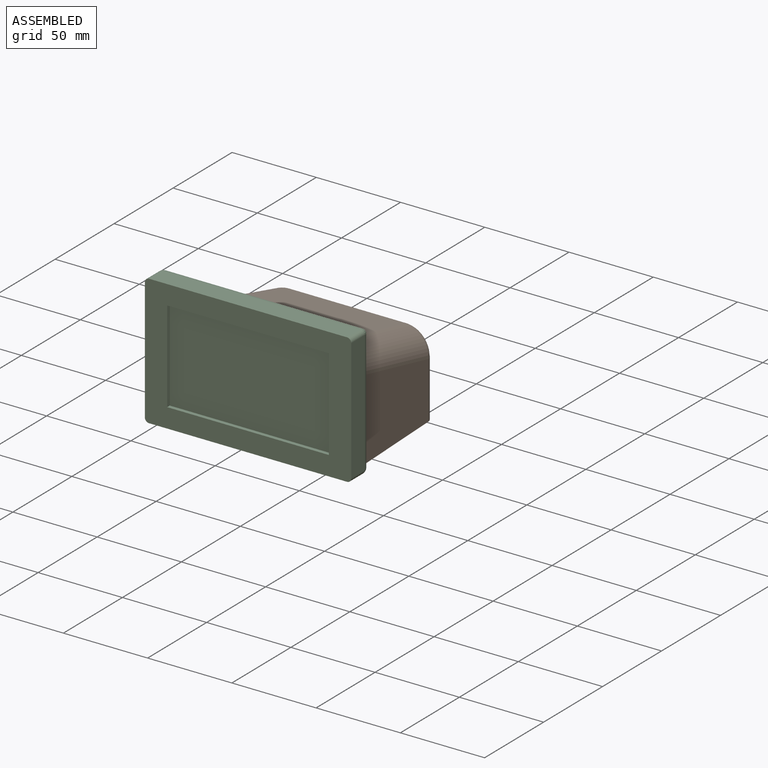
[diagram: assembled view]
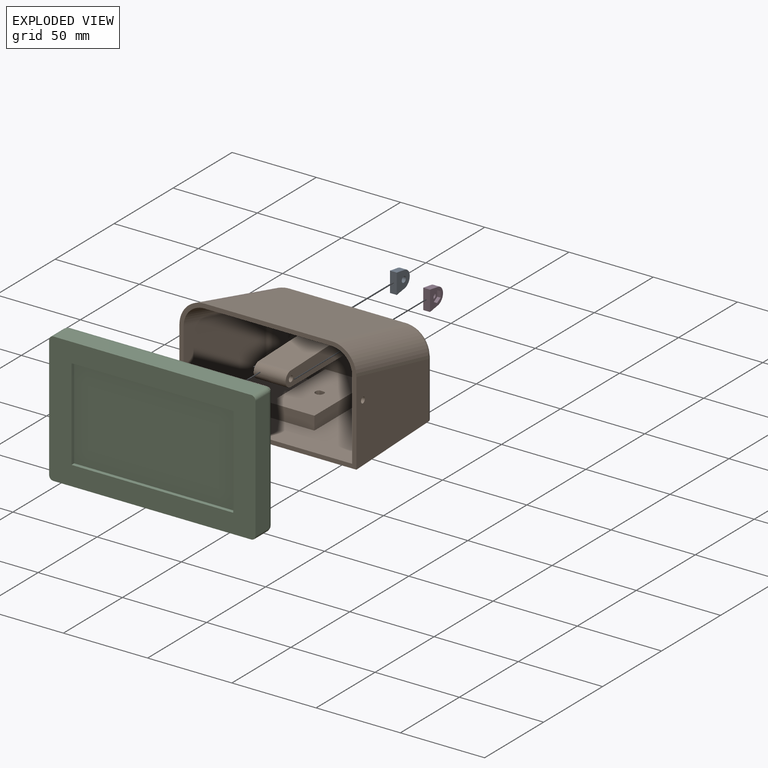
[diagram: exploded view]
GUIDED TOUR — MATED ASSEMBLY (Onshape document 341ad81e3a5d66931a3645af, AutoMate assembly 341ad81e3a5d66931a3645af_e01f6debc5a325e7f9efcc32_fdee58cc52e0db9e7551383a_default)

This assembly has 4 components, labeled P0..P3 below (a component is one placed occurrence of a part; the same part can appear more than once), held together by 3 mates. A mate is a constraint between two components; its type names the relative motion it leaves free:
  FASTENED — locks the two components together rigidly (no relative motion).
Axis/direction vectors are unit vectors and 'through' points are millimeter coordinates, both in the assembly's world frame.

MATES
  1. FASTENED "Fastened 4": P3 <-> P1, direction (-1.000, 0.000, 0.000) through (19.04, 87.10, -22.44) mm
  2. FASTENED "Fastened 2": P2 <-> P0, direction (0.000, 1.000, 0.000) through (-5.46, 81.10, -16.44) mm
  3. FASTENED "Fastened 1": P2 <-> P3, direction (0.000, 1.000, 0.000) through (23.04, 81.10, -16.44) mm

ASSEMBLY ORDER
  1. P1 — the base component [order verified]
  2. P0 [order verified]
  3. P3 [order verified]
  4. P2 [order verified]
Order-tag legend:
  [order verified] — this step's position reverses a verified removal order: the component was checked to insert without passing through the ones already placed.

Of the 4 components, 3 carry the full construction recipe — the FeatureScript program that regenerates the part's solid from scratch; the rest are supplied as boundary geometry only.
Each toured component is shown spotlighted twice — in the assembled view, then in the exploded view, where a leader line traces a displaced component back to its assembled socket (saturated green if recipe-attached, orange if geometry-only; every other component desaturated gray) — followed by its recipe or geometry summary and the mates that hold it.
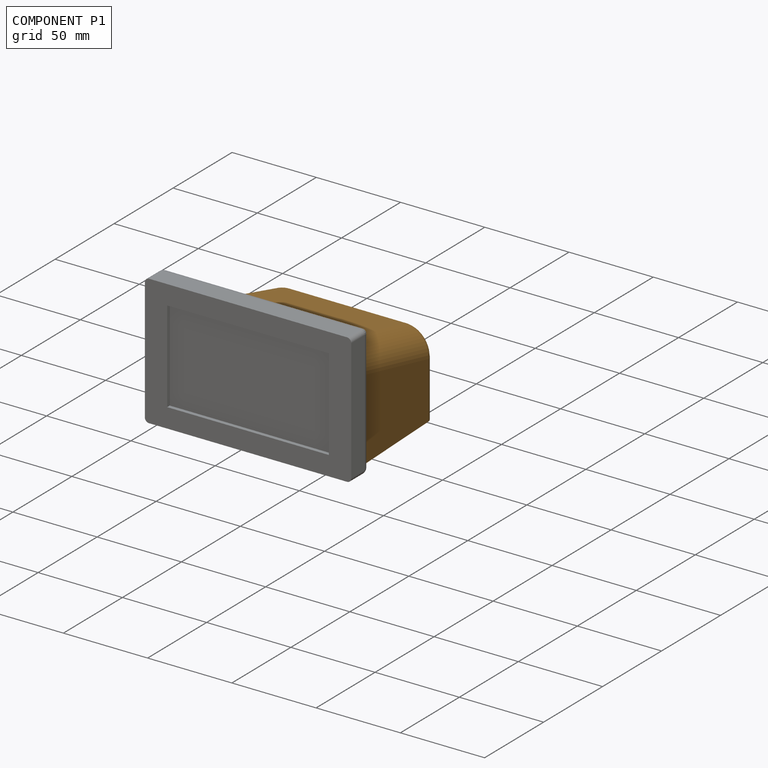
[diagram: component P1 — assembled]
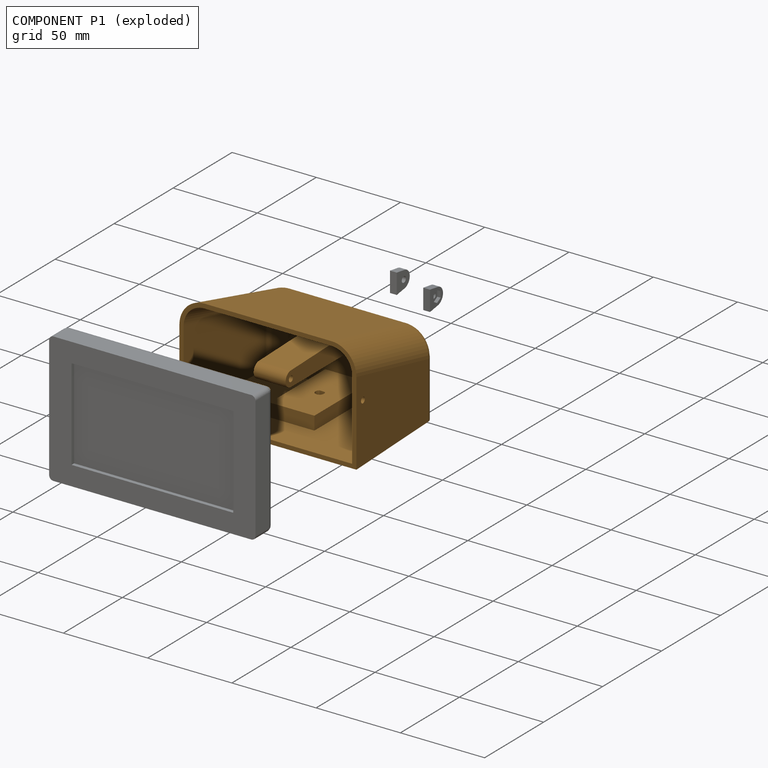
[diagram: component P1 — exploded]
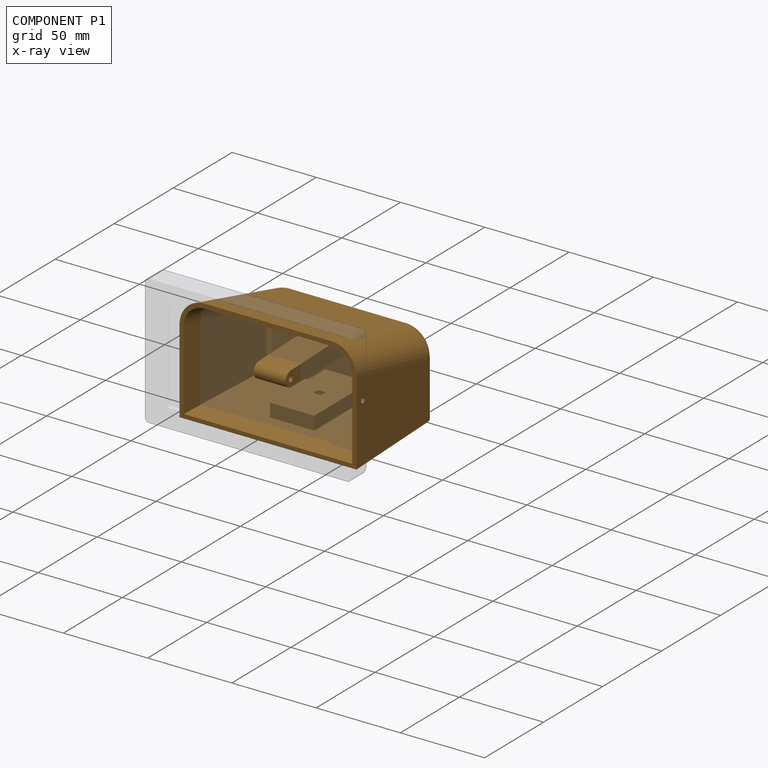
[diagram: component P1 — x-ray view]
COMPONENT P1 — geometry summary (no construction recipe available for this part):
  bounding box: 105.3 x 73.0 x 65.1 mm
  B-rep topology: 1 solid, 83 faces, 446 edges
  volume: 85888 mm^3 (17% of its bounding box)
Held by: FASTENED mate "Fastened 4" to P3.
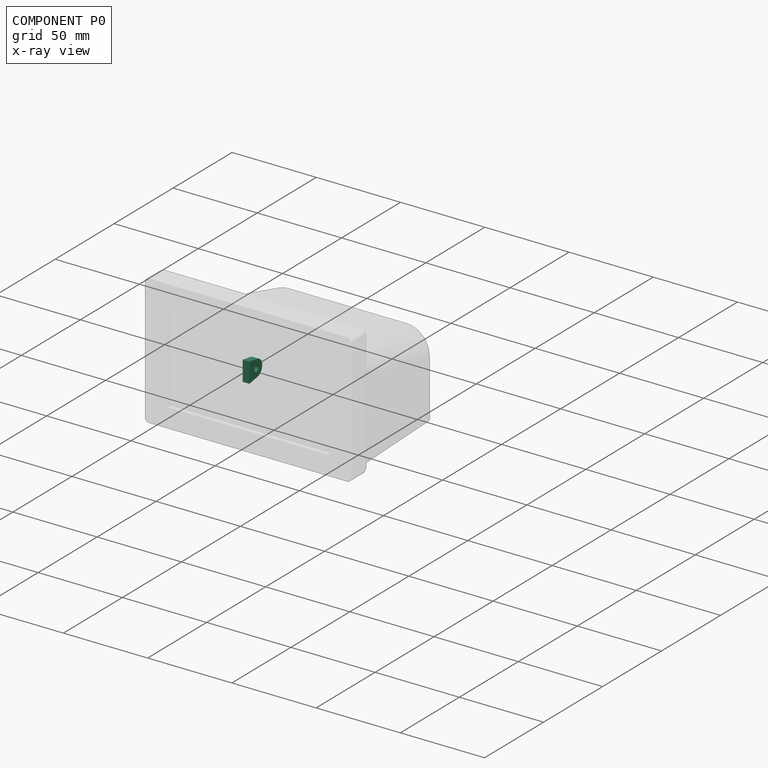
[diagram: component P0 — x-ray view]
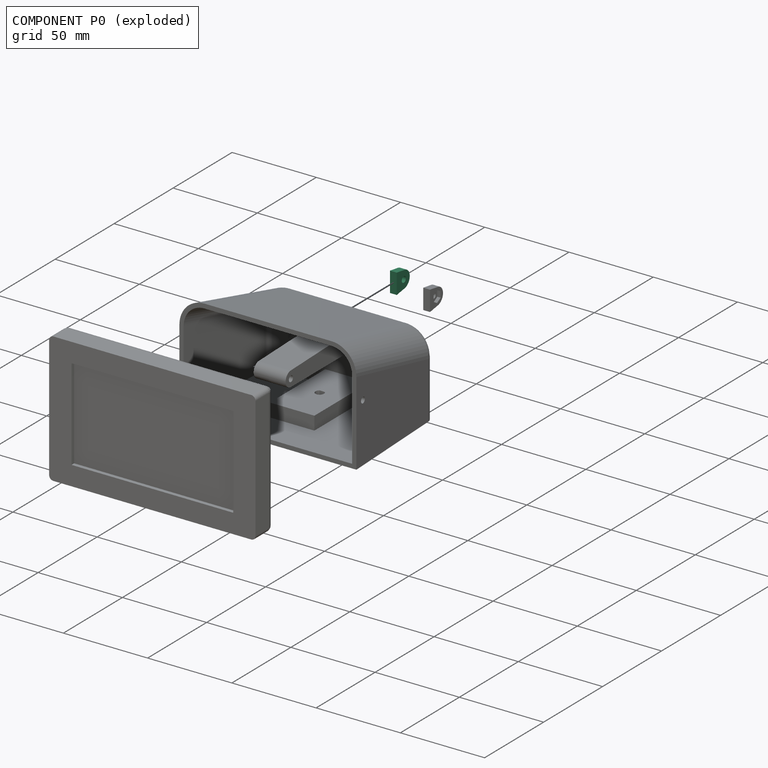
[diagram: component P0 — exploded]
COMPONENT P0 — recipe-attached (CADFS 00266902, mesh-verified: the recipe's output STEP matches this component's geometry to below the mesh-comparison resolution (tessellation chordal tolerance ~0.0251 mm)).
Held by: FASTENED mate "Fastened 2" to P2.
Construction recipe (FeatureScript — the CAD program that rebuilds this solid; sketch coordinates are in the units given by the * unit suffixes, e.g. mm):

FeatureScript 1511;
import(path : "onshape/std/geometry.fs", version : "1511.0");
import(path : "onshape/std/common.fs", version : "1511.0");
const mm = millimeter;
const VERTEX = EntityType.VERTEX;
const EDGE = EntityType.EDGE;
const FACE = EntityType.FACE;
const BODY = EntityType.BODY;
function v(x, y){return vector(x, y);}
function OD(order){return orderDisambiguation(order);}
function OSD(set){return originalSetDisambiguation(set);}
function TD(topology){return topologyDisambiguation(topology);}
function TDD(query){return trueDependencyDisambiguation(query);}
function sQuery(a, b, c) {return sketchEntityQuery(a, b, c);}

annotation { "Feature Type Name" : "Feature", "Feature Type Description" : "" }
export const myFeature = defineFeature(function(context is Context, id is Id, definition is map)
    precondition{}
    {
        {
            var Q0;
            Q0=qCreatedBy(makeId("Right.planeOp"),FACE);
            var sketch = newSketch(context, id + "F0", { "sketchPlane" : qUnion([Q0])});
            skCircle(sketch, "E0", {"center": v(-26.77, 32.62) * mm, "radius": 5 * mm});
            skLineSegment(sketch, "E1", {"start": v(-32.77, 26.62) * mm, "end": v(-20.77, 26.62) * mm});
            skLineSegment(sketch, "E2", {"start": v(-31.7, 33.4) * mm, "end": v(-32.77, 26.62) * mm});
            skLineSegment(sketch, "E3", {"start": v(-21.83, 33.4) * mm, "end": v(-20.77, 26.62) * mm});
            skCircle(sketch, "E4", {"center": v(-26.77, 32.62) * mm, "radius": 1.75 * mm});
            skCircle(sketch, "E5", {"center": v(-26.77, 32.62) * mm, "radius": 3 * mm});
            skSolve(sketch);
        }
        {
            var Q0;
            Q0 = qSketchRegion(id + "F0", true);
            extrude(context, id + "F1", {"entities" : qUnion([Q0]), "depth" : 4 * mm});
        }
        {
            var Q0;
            Q0=makeQuery(id+"F0.imprint","IMPRINT",FACE,{"disambiguationData":[TD([[makeQuery(id+"F0.imprint","IMPRINT",EDGE,{"derivedFrom":sQuery(id+"F0.wireOp",EDGE,"E4")}),-1.0]])]});
            extrude(context, id + "F2", {"entities" : qUnion([Q0]), "operationType" : NewBodyOperationType.ADD, "depth" : 2 * mm});
        }
    });
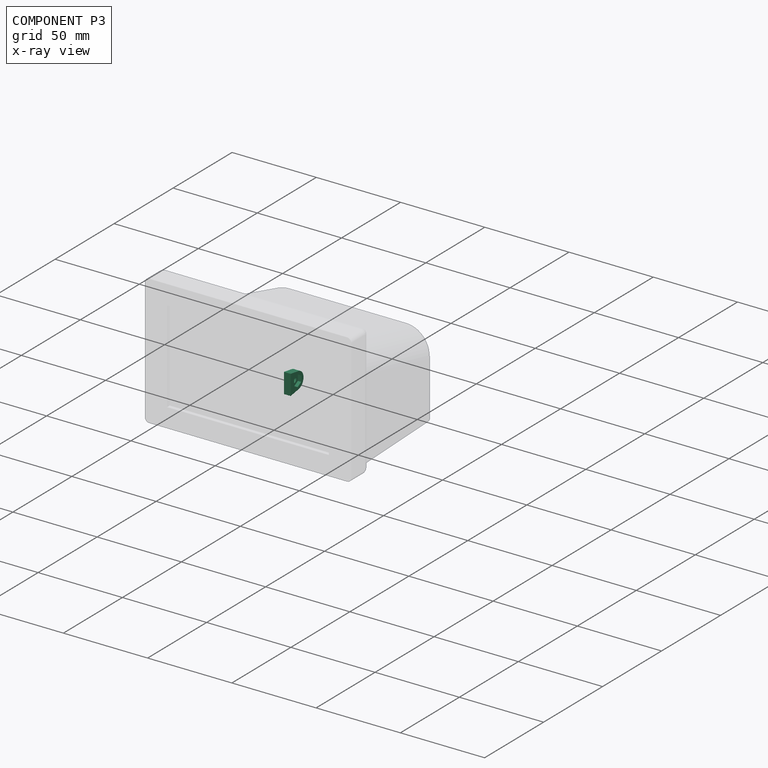
[diagram: component P3 — x-ray view]
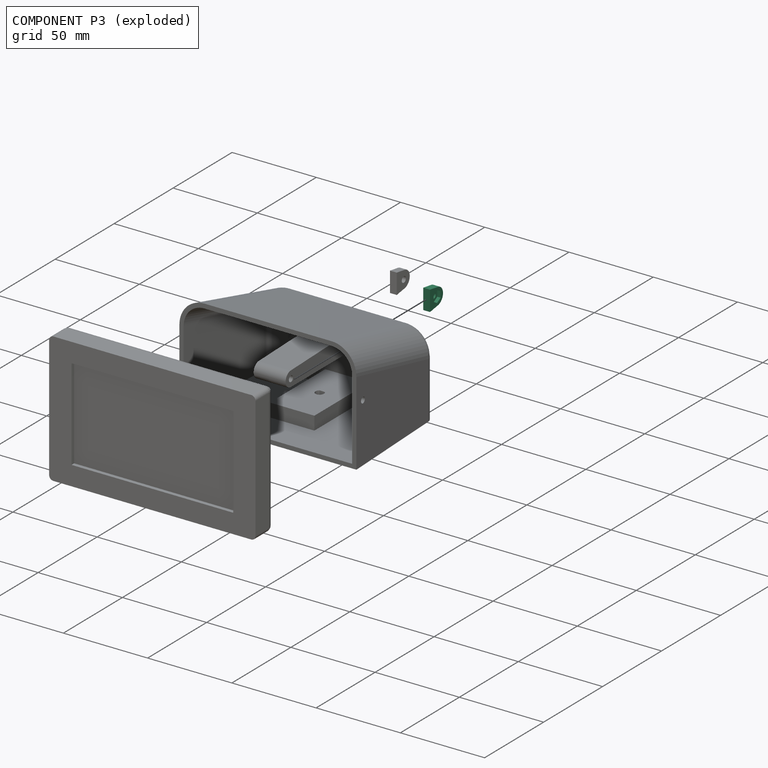
[diagram: component P3 — exploded]
COMPONENT P3 — recipe-attached (CADFS 00266903, mesh-verified: the recipe's output STEP matches this component's geometry to below the mesh-comparison resolution (tessellation chordal tolerance ~0.0251 mm)).
Held by: FASTENED mate "Fastened 4" to P1; FASTENED mate "Fastened 1" to P2.
Construction recipe (FeatureScript — the CAD program that rebuilds this solid; sketch coordinates are in the units given by the * unit suffixes, e.g. mm):

FeatureScript 1511;
import(path : "onshape/std/geometry.fs", version : "1511.0");
import(path : "onshape/std/common.fs", version : "1511.0");
const mm = millimeter;
const VERTEX = EntityType.VERTEX;
const EDGE = EntityType.EDGE;
const FACE = EntityType.FACE;
const BODY = EntityType.BODY;
function v(x, y){return vector(x, y);}
function OD(order){return orderDisambiguation(order);}
function OSD(set){return originalSetDisambiguation(set);}
function TD(topology){return topologyDisambiguation(topology);}
function TDD(query){return trueDependencyDisambiguation(query);}
function sQuery(a, b, c) {return sketchEntityQuery(a, b, c);}

annotation { "Feature Type Name" : "Feature", "Feature Type Description" : "" }
export const myFeature = defineFeature(function(context is Context, id is Id, definition is map)
    precondition{}
    {
        {
            var Q0;
            Q0=qCreatedBy(makeId("Right.planeOp"),FACE);
            var sketch = newSketch(context, id + "F0", { "sketchPlane" : qUnion([Q0])});
            skCircle(sketch, "E0", {"center": v(-26.65, 32.73) * mm, "radius": 5 * mm});
            skLineSegment(sketch, "E1", {"start": v(-32.65, 26.73) * mm, "end": v(-20.65, 26.73) * mm});
            skLineSegment(sketch, "E2", {"start": v(-31.6, 33.5) * mm, "end": v(-32.65, 26.73) * mm});
            skLineSegment(sketch, "E3", {"start": v(-21.71, 33.5) * mm, "end": v(-20.65, 26.73) * mm});
            skCircle(sketch, "E4", {"center": v(-26.65, 32.73) * mm, "radius": 1.75 * mm});
            skLineSegment(sketch, "E5.0", {"start": v(-30.12, 32.73) * mm, "end": v(-28.39, 35.73) * mm});
            skLineSegment(sketch, "E5.1", {"start": v(-28.39, 35.73) * mm, "end": v(-24.92, 35.73) * mm});
            skLineSegment(sketch, "E5.2", {"start": v(-24.92, 35.73) * mm, "end": v(-23.19, 32.73) * mm});
            skLineSegment(sketch, "E5.3", {"start": v(-23.19, 32.73) * mm, "end": v(-24.92, 29.73) * mm});
            skLineSegment(sketch, "E5.4", {"start": v(-24.92, 29.73) * mm, "end": v(-28.39, 29.73) * mm});
            skLineSegment(sketch, "E5.5", {"start": v(-28.39, 29.73) * mm, "end": v(-30.12, 32.73) * mm});
            skPoint(sketch, "E5.0.midPoint", {"position": v(-29.25, 34.23) * mm});
            skSolve(sketch);
        }
        {
            var Q0;
            Q0=makeQuery(id+"F0.imprint","IMPRINT",FACE,{"disambiguationData":[TD([[makeQuery(id+"F0.imprint","IMPRINT",EDGE,{"derivedFrom":sQuery(id+"F0.wireOp",EDGE,"E1")}),1.0]])]});
            var Q1;
            Q1=makeQuery(id+"F0.imprint","IMPRINT",FACE,{"disambiguationData":[TD([[makeQuery(id+"F0.imprint","IMPRINT",EDGE,{"derivedFrom":sQuery(id+"F0.wireOp",EDGE,"E5.0")}),1.0]])]});
            extrude(context, id + "F1", {"entities" : qUnion([Q0, Q1]), "depth" : 4 * mm});
        }
        {
            var Q0;
            Q0=makeQuery(id+"F0.imprint","IMPRINT",FACE,{"disambiguationData":[TD([[makeQuery(id+"F0.imprint","IMPRINT",EDGE,{"derivedFrom":sQuery(id+"F0.wireOp",EDGE,"E4")}),-1.0]])]});
            extrude(context, id + "F2", {"entities" : qUnion([Q0]), "operationType" : NewBodyOperationType.ADD, "depth" : 2 * mm});
        }
    });
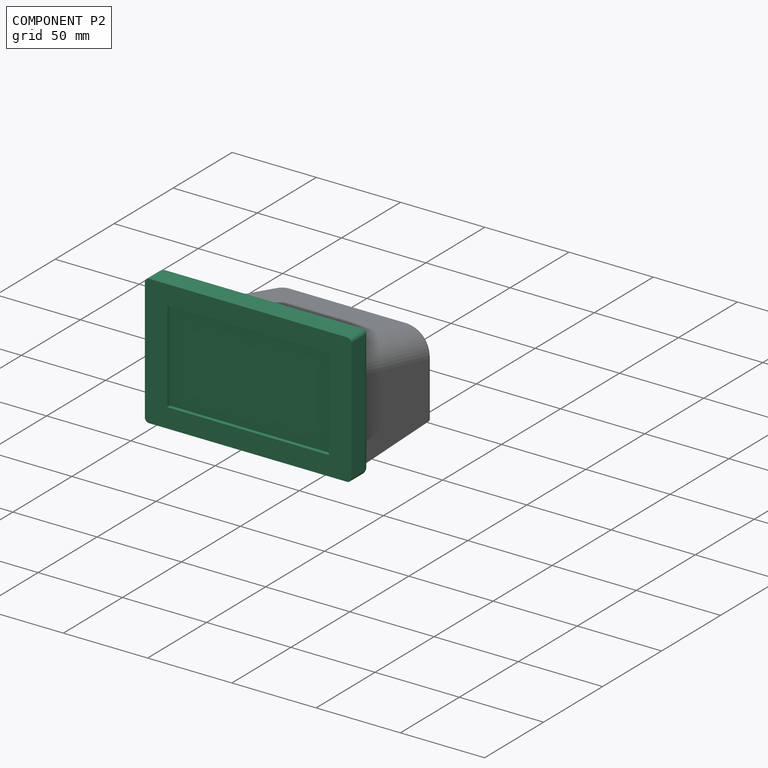
[diagram: component P2 — assembled]
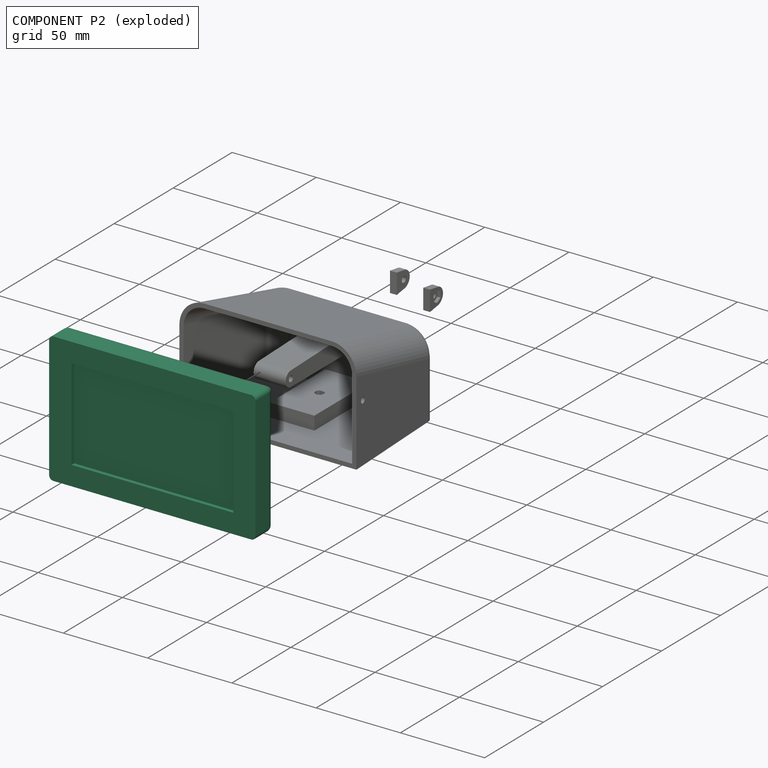
[diagram: component P2 — exploded]
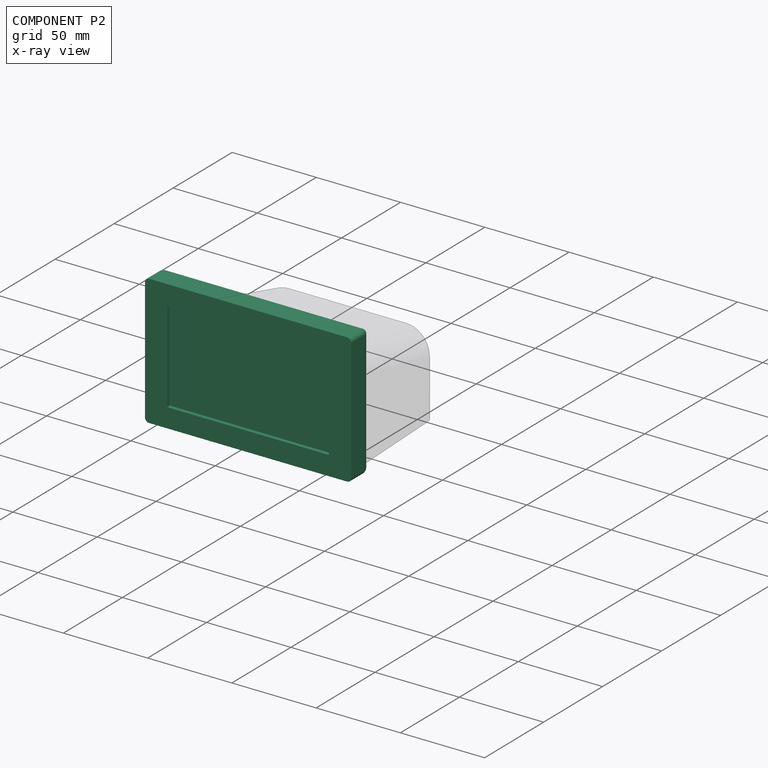
[diagram: component P2 — x-ray view]
COMPONENT P2 — recipe-attached (CADFS 00266901, mesh-verified: the recipe's output STEP matches this component's geometry to below the mesh-comparison resolution (tessellation chordal tolerance ~0.219 mm)).
Held by: FASTENED mate "Fastened 2" to P0; FASTENED mate "Fastened 1" to P3.
Construction recipe (FeatureScript — the CAD program that rebuilds this solid; sketch coordinates are in the units given by the * unit suffixes, e.g. mm):

FeatureScript 1511;
import(path : "onshape/std/geometry.fs", version : "1511.0");
import(path : "onshape/std/common.fs", version : "1511.0");
const mm = millimeter;
const VERTEX = EntityType.VERTEX;
const EDGE = EntityType.EDGE;
const FACE = EntityType.FACE;
const BODY = EntityType.BODY;
function v(x, y){return vector(x, y);}
function OD(order){return orderDisambiguation(order);}
function OSD(set){return originalSetDisambiguation(set);}
function TD(topology){return topologyDisambiguation(topology);}
function TDD(query){return trueDependencyDisambiguation(query);}
function sQuery(a, b, c) {return sketchEntityQuery(a, b, c);}

annotation { "Feature Type Name" : "Feature", "Feature Type Description" : "" }
export const myFeature = defineFeature(function(context is Context, id is Id, definition is map)
    precondition{}
    {
        {
            var Q0;
            Q0=qCreatedBy(makeId("Front.planeOp"),FACE);
            var sketch = newSketch(context, id + "F0", { "sketchPlane" : qUnion([Q0])});
            skLineSegment(sketch, "E0.bottom", {"start": v(61.25, 38.75) * mm, "end": v(-61.25, 38.75) * mm});
            skLineSegment(sketch, "E0.top", {"start": v(61.25, -38.75) * mm, "end": v(-61.25, -38.75) * mm});
            skLineSegment(sketch, "E0.left", {"start": v(61.25, 38.75) * mm, "end": v(61.25, -38.75) * mm});
            skLineSegment(sketch, "E0.right", {"start": v(-61.25, 38.75) * mm, "end": v(-61.25, -38.75) * mm});
            skPoint(sketch, "E0.middle", {"position": v(0, 0) * mm});
            skLineSegment(sketch, "E1.bottom", {"start": v(48, 27.25) * mm, "end": v(-48, 27.25) * mm});
            skLineSegment(sketch, "E1.top", {"start": v(48, -27.25) * mm, "end": v(-48, -27.25) * mm});
            skLineSegment(sketch, "E1.left", {"start": v(48, 27.25) * mm, "end": v(48, -27.25) * mm});
            skLineSegment(sketch, "E1.right", {"start": v(-48, 27.25) * mm, "end": v(-48, -27.25) * mm});
            skLineSegment(sketch, "E2.bottom", {"start": v(10.25, -10.75) * mm, "end": v(14.25, -10.75) * mm});
            skLineSegment(sketch, "E2.top", {"start": v(10.25, 1.25) * mm, "end": v(14.25, 1.25) * mm});
            skLineSegment(sketch, "E2.left", {"start": v(10.25, -10.75) * mm, "end": v(10.25, 1.25) * mm});
            skLineSegment(sketch, "E2.right", {"start": v(14.25, -10.75) * mm, "end": v(14.25, 1.25) * mm});
            skPoint(sketch, "E2.middle", {"position": v(12.25, -4.75) * mm});
            skLineSegment(sketch, "E3.bottom", {"start": v(-14.25, -10.75) * mm, "end": v(-10.25, -10.75) * mm});
            skLineSegment(sketch, "E3.top", {"start": v(-14.25, 1.25) * mm, "end": v(-10.25, 1.25) * mm});
            skLineSegment(sketch, "E3.left", {"start": v(-14.25, -10.75) * mm, "end": v(-14.25, 1.25) * mm});
            skLineSegment(sketch, "E3.right", {"start": v(-10.25, -10.75) * mm, "end": v(-10.25, 1.25) * mm});
            skPoint(sketch, "E3.middle", {"position": v(-12.25, -4.75) * mm});
            skSolve(sketch);
        }
        {
            var Q0;
            Q0=makeQuery(id+"F0.imprint","IMPRINT",FACE,{"disambiguationData":[TD([[makeQuery(id+"F0.imprint","IMPRINT",EDGE,{"derivedFrom":sQuery(id+"F0.wireOp",EDGE,"E0.bottom")}),1.0]])]});
            extrude(context, id + "F1", {"entities" : qUnion([Q0]), "depth" : 16.23 * mm});
        }
        {
            var Q0;
            Q0=makeQuery(id+"F0.imprint","IMPRINT",FACE,{"disambiguationData":[TD([[makeQuery(id+"F0.imprint","IMPRINT",EDGE,{"derivedFrom":sQuery(id+"F0.wireOp",EDGE,"E1.bottom")}),1.0]])]});
            var Q1;
            Q1=makeQuery(id+"F0.imprint","IMPRINT",FACE,{"disambiguationData":[TD([[makeQuery(id+"F0.imprint","IMPRINT",EDGE,{"derivedFrom":sQuery(id+"F0.wireOp",EDGE,"E3.bottom")}),1.0]])]});
            var Q2;
            Q2=makeQuery(id+"F0.imprint","IMPRINT",FACE,{"disambiguationData":[TD([[makeQuery(id+"F0.imprint","IMPRINT",EDGE,{"derivedFrom":sQuery(id+"F0.wireOp",EDGE,"E2.bottom")}),1.0]])]});
            extrude(context, id + "F2", {"entities" : qUnion([Q0, Q1, Q2]), "operationType" : NewBodyOperationType.ADD, "depth" : 14 * mm});
        }
        {
            var Q0;
            Q0=makeQuery(id+"F1.opExtrude","SWEPT_EDGE",EDGE,{"disambiguationData":[OSD([sQuery(id+"F0.wireOp",EDGE,"E0.bottom"),sQuery(id+"F0.wireOp",EDGE,"E0.right")])]});
            var Q1;
            Q1=makeQuery(id+"F1.opExtrude","SWEPT_EDGE",EDGE,{"disambiguationData":[OSD([sQuery(id+"F0.wireOp",EDGE,"E0.bottom"),sQuery(id+"F0.wireOp",EDGE,"E0.left")])]});
            var Q2;
            Q2=makeQuery(id+"F1.opExtrude","SWEPT_EDGE",EDGE,{"disambiguationData":[OSD([sQuery(id+"F0.wireOp",EDGE,"E0.top"),sQuery(id+"F0.wireOp",EDGE,"E0.left")])]});
            var Q3;
            Q3=makeQuery(id+"F1.opExtrude","SWEPT_EDGE",EDGE,{"disambiguationData":[OSD([sQuery(id+"F0.wireOp",EDGE,"E0.top"),sQuery(id+"F0.wireOp",EDGE,"E0.right")])]});
            fillet(context, id + "F3", {"entities" : qUnion([Q0, Q1, Q2, Q3]), "radius" : 2.5 * mm, "tangentPropagation" : true, "allowEdgeOverflow" : false});
        }
        {
            var Q0;
            Q0=makeQuery(id+"F1.opExtrude","CAP_EDGE",EDGE,{"disambiguationData":[OSD([sQuery(id+"F0.wireOp",EDGE,"E0.bottom")])],"isStart":true});
            fillet(context, id + "F4", {"entities" : qUnion([Q0]), "radius" : 5 * mm, "tangentPropagation" : true, "allowEdgeOverflow" : false});
        }
        {
            var Q0;
            Q0=makeQuery(id+"F0.imprint","IMPRINT",FACE,{"disambiguationData":[TD([[makeQuery(id+"F0.imprint","IMPRINT",EDGE,{"derivedFrom":sQuery(id+"F0.wireOp",EDGE,"E2.bottom")}),1.0]])]});
            var Q1;
            Q1=makeQuery(id+"F0.imprint","IMPRINT",FACE,{"disambiguationData":[TD([[makeQuery(id+"F0.imprint","IMPRINT",EDGE,{"derivedFrom":sQuery(id+"F0.wireOp",EDGE,"E3.bottom")}),1.0]])]});
            extrude(context, id + "F5", {"entities" : qUnion([Q0, Q1]), "operationType" : NewBodyOperationType.REMOVE, "depth" : .5 * mm});
        }
    });
PROVENANCE & LICENSES
Assembly (occurrences, transforms, mates, per-part STEP geometry): AutoMate dataset, Zenodo record 7776208, CC0.
Construction recipes: CADFS (HuggingFace VladPyatov/CADFS, CC-BY-4.0, layered over the ABC dataset), FeatureScript reconstruction programs keyed by ABC model id.
Join: ABC meta listings map ABC model id -> Onshape documentId; within a shared document, parts are matched by geometric signature (bounding-box dims + volume at 0.1% relative tolerance, exact B-rep face/solid counts).
Verification: 3 of this assembly's 4 components carry a recipe attachment, and every attachment is mesh-verified: the CADFS STEP and the AutoMate member STEP were compared as meshes in their shared local frame (symmetric sampled-point-to-mesh distance); worst across the 3 attachments: below the mesh-comparison resolution (tessellation chordal tolerance ~0.219 mm) on a 146 mm part.
Renders: orthographic iso camera (az 35 / el 25); the floor grid conveys scale (grid pitch printed in each image; no ruler). In the exploded view each component is displaced by its stored offset vector: the offsets alone carry the explosion direction (mate normal/axis signs are not orientation cues and do not encode it), and separation distances are assigned per mate-chain, not proportionally to assembly-order depth.
